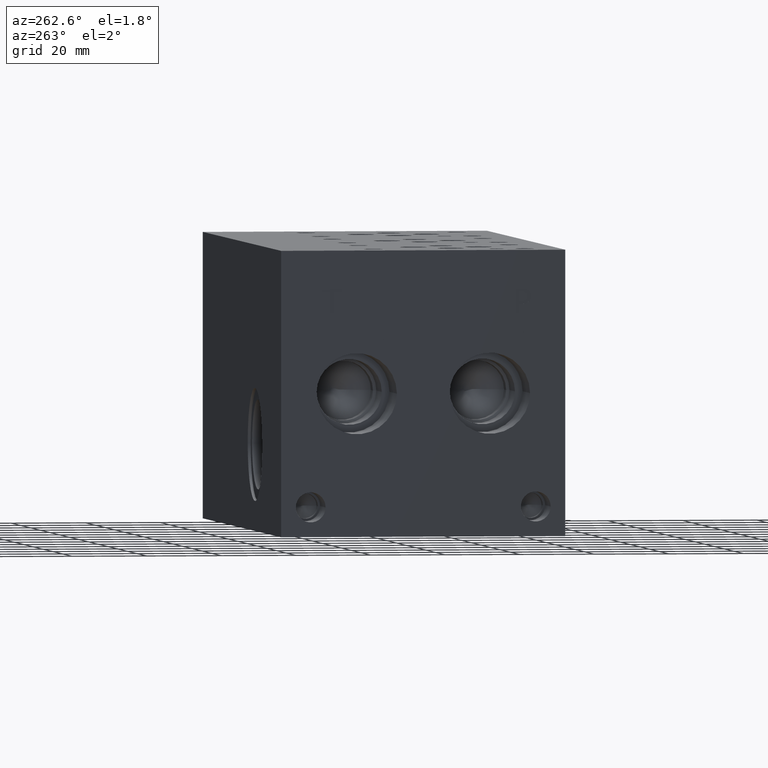
[diagram: clean part render]
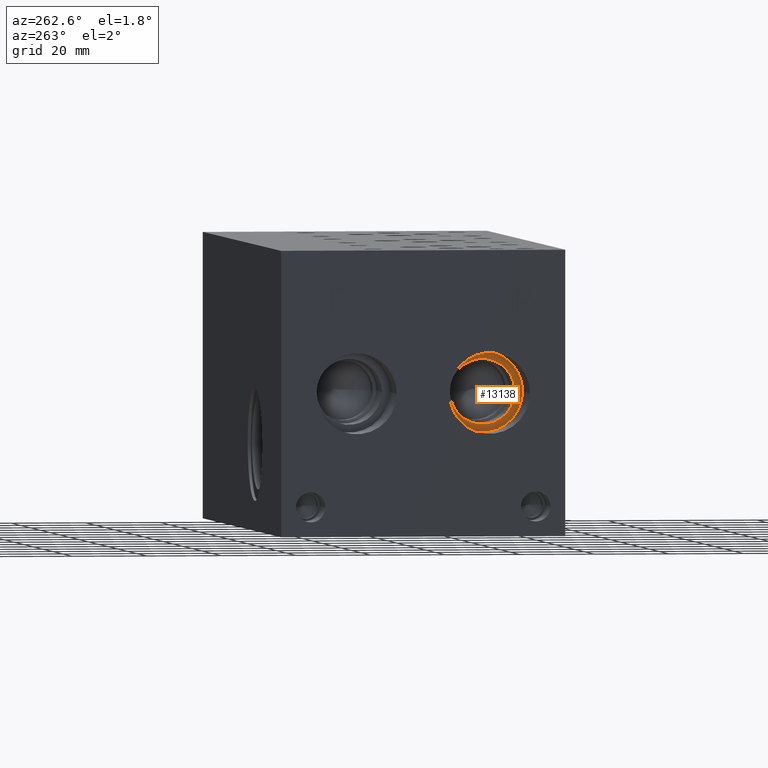
[diagram: same view with one face highlighted and labeled with its STEP entity id]
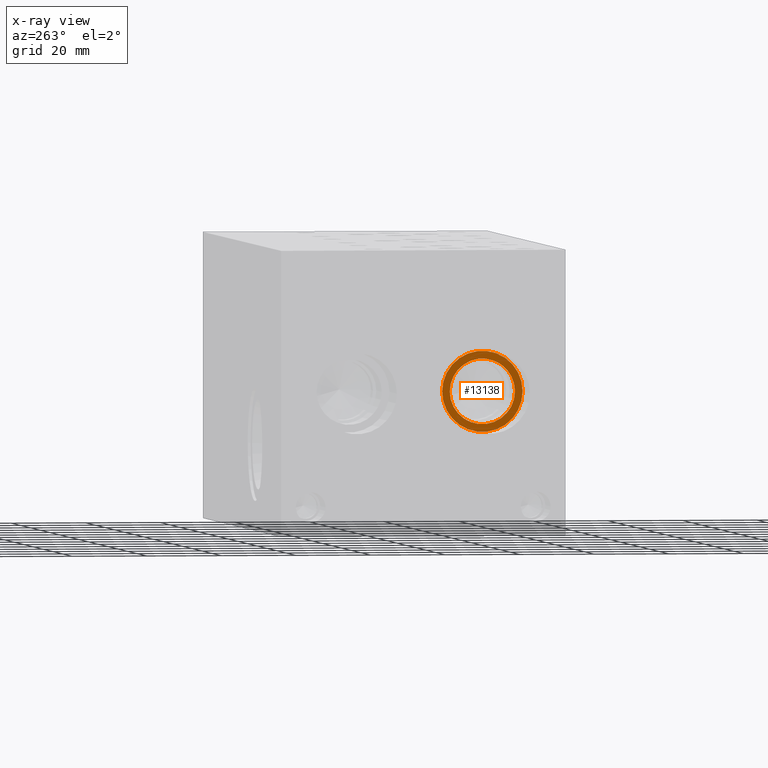
[diagram: x-ray of the same camera — body ghosted, the highlighted face saturated]
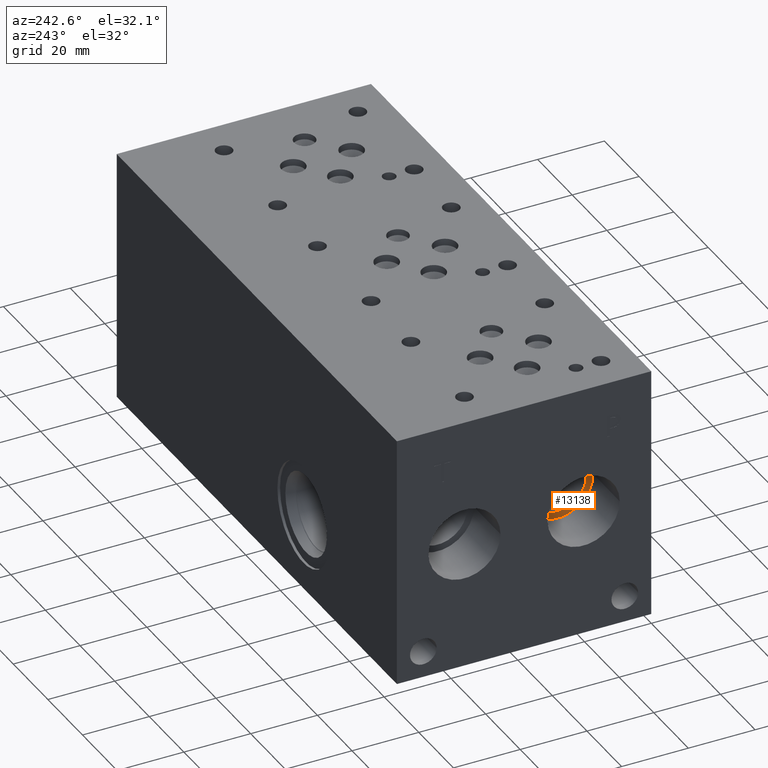
[diagram: same view with one face highlighted and labeled with its STEP entity id]
A machine part, auxiliary view. The second image highlights one B-rep face of the part: STEP entity #13138.
The next image is the same camera in x-ray: the body ghosted, the highlighted face saturated — about 0% of this face is hidden behind the body in this view.
A second angle (auxiliary view) of the same face is appended — the face is thin or edge-on in the first view.
In plain terms, the highlighted planar face has unit normal (-1, 0, 0).
Its self-contained STEP definition (entity closure, byte-faithful):
#246=CIRCLE('',#13757,10.795);
#247=CIRCLE('',#13758,10.795);
#248=CIRCLE('',#13759,8.7376);
#504=FACE_BOUND('',#2243,.T.);
#898=PLANE('',#13756);
#1488=FACE_OUTER_BOUND('',#2242,.T.);
#2242=EDGE_LOOP('',(#11292,#11293));
#2243=EDGE_LOOP('',(#11294));
#6188=VERTEX_POINT('',#22321);
#6189=VERTEX_POINT('',#22322);
#6190=VERTEX_POINT('',#22325);
#7959=EDGE_CURVE('',#6188,#6189,#246,.T.);
#7960=EDGE_CURVE('',#6189,#6188,#247,.T.);
#7961=EDGE_CURVE('',#6190,#6190,#248,.T.);
#11292=ORIENTED_EDGE('',*,*,#7959,.T.);
#11293=ORIENTED_EDGE('',*,*,#7960,.T.);
#11294=ORIENTED_EDGE('',*,*,#7961,.F.);
#13138=ADVANCED_FACE('',(#1488,#504),#898,.T.);
#13756=AXIS2_PLACEMENT_3D('',#22320,#16126,#16127);
#13757=AXIS2_PLACEMENT_3D('',#22323,#16128,#16129);
#13758=AXIS2_PLACEMENT_3D('',#22324,#16130,#16131);
#13759=AXIS2_PLACEMENT_3D('',#22326,#16132,#16133);
#16126=DIRECTION('center_axis',(-1.,0.,0.));
#16127=DIRECTION('ref_axis',(0.,1.,0.));
#16128=DIRECTION('center_axis',(-1.,0.,0.));
#16129=DIRECTION('ref_axis',(0.,1.,0.));
#16130=DIRECTION('center_axis',(-1.,0.,0.));
#16131=DIRECTION('ref_axis',(0.,1.,0.));
#16132=DIRECTION('center_axis',(-1.,0.,0.));
#16133=DIRECTION('ref_axis',(0.,1.,0.));
#22320=CARTESIAN_POINT('Origin',(15.367,20.2438,38.1));
#22321=CARTESIAN_POINT('',(15.367,31.0388,38.1));
#22322=CARTESIAN_POINT('',(15.367,9.4488,38.1));
#22323=CARTESIAN_POINT('Origin',(15.367,20.2438,38.1));
#22324=CARTESIAN_POINT('Origin',(15.367,20.2438,38.1));
#22325=CARTESIAN_POINT('',(15.367,11.5062,38.1));
#22326=CARTESIAN_POINT('Origin',(15.367,20.2438,38.1));